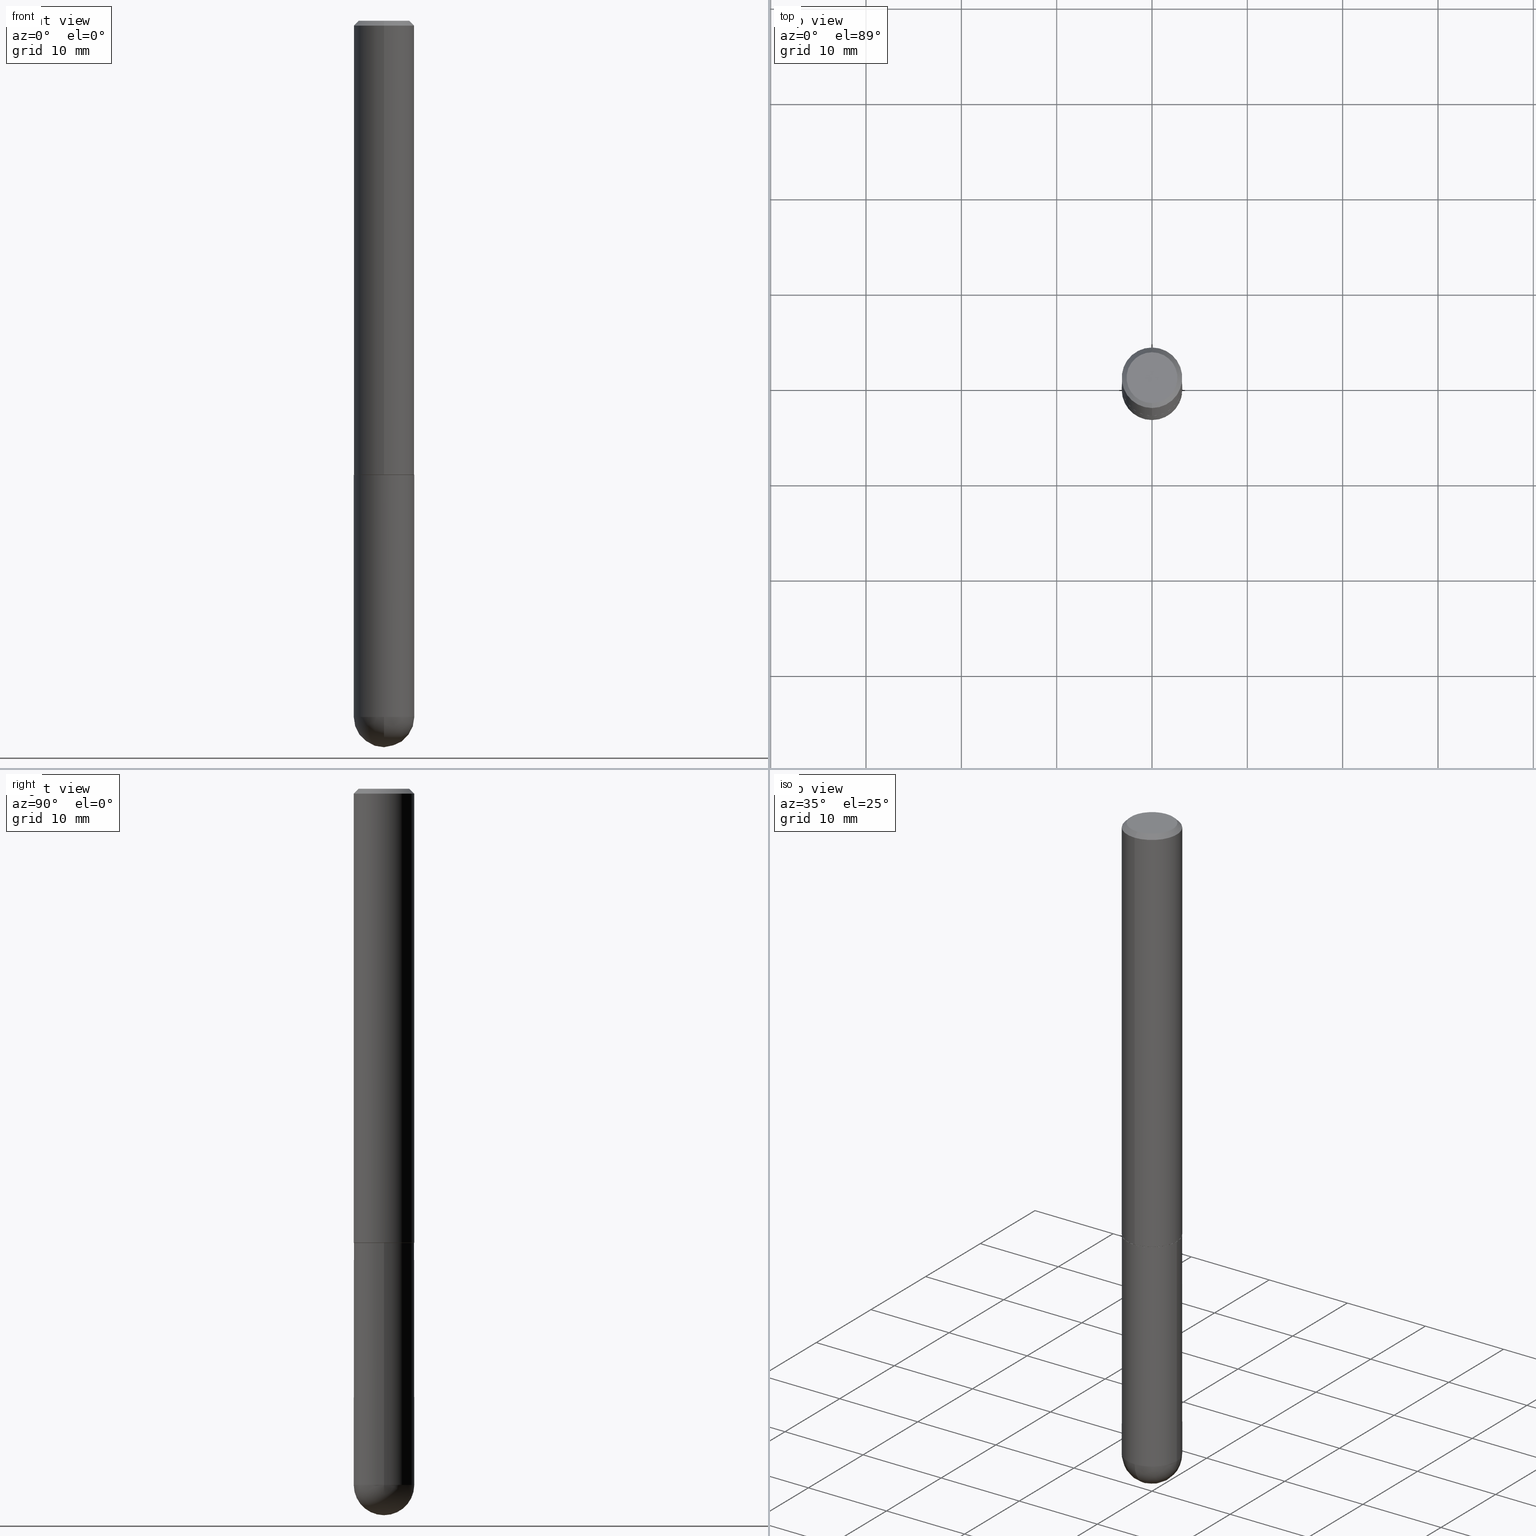
[diagram: canonical four-view strip — front | top / right | iso, engineering-drawing reading convention]
A machine part, canonical four-view strip (front | top / right | iso — engineering-drawing reading convention). The complete STEP part file that produces these views, byte-faithful:
ISO-10303-21;
HEADER;
FILE_DESCRIPTION (( 'STEP AP203' ),
    '1' );
FILE_NAME ('31832.STEP',
    '2024-02-21T16:59:24',
    ( '' ),
    ( '' ),
    'SwSTEP 2.0',
    'SolidWorks 2023',
    '' );
FILE_SCHEMA (( 'CONFIG_CONTROL_DESIGN' ));
ENDSEC;

DATA;
#1 = EDGE_LOOP ( 'NONE', ( #340, #269 ) ) ;
#2 = DIRECTION ( 'NONE',  ( -2.445468806185136597E-29, 3.491481338843145583E-15, 1.000000000000000000 ) ) ;
#3 = VERTEX_POINT ( 'NONE', #177 ) ;
#4 = CIRCLE ( 'NONE', #167, 0.1250000000000002498 ) ;
#5 = LOCAL_TIME ( 11, 59, 24.00000000000000000, #284 ) ;
#6 = APPROVAL_DATE_TIME ( #191, #7 ) ;
#7 = APPROVAL ( #339, 'UNSPECIFIED' ) ;
#8 = FACE_OUTER_BOUND ( 'NONE', #1, .T. ) ;
#9 = ADVANCED_FACE ( 'NONE', ( #8 ), #29, .F. ) ;
#10 = DIRECTION ( 'NONE',  ( -6.982962677686265133E-15, -1.000000000000000000, 3.490963975200467606E-15 ) ) ;
#11 = CARTESIAN_POINT ( 'NONE',  ( -8.658873720330510776E-16, -0.1240000000000065355, -1.874999999999999556 ) ) ;
#12 = DIRECTION ( 'NONE',  ( 2.438088387897960049E-29, -3.491481338843145188E-15, -1.000000000000000000 ) ) ;
#13 = CARTESIAN_POINT ( 'NONE',  ( 0.1250000000000000000, -8.728703347107833388E-16, 6.095220969744919741E-30 ) ) ;
#14 = CC_DESIGN_PERSON_AND_ORGANIZATION_ASSIGNMENT ( #256, #92, ( #372 ) ) ;
#15 = LOCAL_TIME ( 11, 59, 24.00000000000000000, #250 ) ;
#16 = DATE_TIME_ROLE ( 'classification_date' ) ;
#17 = APPROVAL_STATUS ( 'not_yet_approved' ) ;
#18 = CARTESIAN_POINT ( 'NONE',  ( 7.030722817782268837E-29, -1.003800884917404626E-14, -2.875000000000000444 ) ) ;
#19 = DIRECTION ( 'NONE',  ( 1.000000000000000000, -6.982962677686262766E-15, 0.000000000000000000 ) ) ;
#20 = ORGANIZATION ( 'UNSPECIFIED', 'UNSPECIFIED', '' ) ;
#21 = ADVANCED_FACE ( 'NONE', ( #384 ), #71, .T. ) ;
#22 = CARTESIAN_POINT ( 'NONE',  ( 8.728703347107839305E-16, 0.1249999999999999584, -0.02000000000000046185 ) ) ;
#23 = CYLINDRICAL_SURFACE ( 'NONE', #148, 0.1250000000000001388 ) ;
#24 = EDGE_CURVE ( 'NONE', #68, #3, #369, .T. ) ;
#25 = CIRCLE ( 'NONE', #316, 0.1050000000000001210 ) ;
#26 = APPROVAL_PERSON_ORGANIZATION ( #41, #7, #43 ) ;
#27 = LINE ( 'NONE', #209, #365 ) ;
#28 = ORIENTED_EDGE ( 'NONE', *, *, #378, .T. ) ;
#29 = PLANE ( 'NONE',  #87 ) ;
#30 = AXIS2_PLACEMENT_3D ( 'NONE', #390, #138, #166 ) ;
#31 = ORIENTED_EDGE ( 'NONE', *, *, #292, .T. ) ;
#32 = EDGE_CURVE ( 'NONE', #56, #356, #109, .T. ) ;
#33 = APPLICATION_CONTEXT ( 'configuration controlled 3d designs of mechanical parts and assemblies' ) ;
#34 = CARTESIAN_POINT ( 'NONE',  ( 4.583485568581772331E-29, -6.542066489525676145E-15, -1.874000000000000110 ) ) ;
#35 = ORIENTED_EDGE ( 'NONE', *, *, #227, .F. ) ;
#36 = LINE ( 'NONE', #67, #405 ) ;
#37 = ORIENTED_EDGE ( 'NONE', *, *, #382, .F. ) ;
#38 = AXIS2_PLACEMENT_3D ( 'NONE', #184, #285, #281 ) ;
#39 = EDGE_CURVE ( 'NONE', #3, #68, #278, .T. ) ;
#40 = DIRECTION ( 'NONE',  ( -2.445830079285897691E-29, 3.490963975200467606E-15, 1.000000000000000000 ) ) ;
#41 = PERSON_AND_ORGANIZATION ( #386, #20 ) ;
#42 = DIRECTION ( 'NONE',  ( -6.982962677686265922E-15, -1.000000000000000000, 3.490963975200467606E-15 ) ) ;
#43 = APPROVAL_ROLE ( '' ) ;
#44 = PLANE ( 'NONE',  #102 ) ;
#45 = DIRECTION ( 'NONE',  ( -2.445830079285897972E-29, 3.490963975200467212E-15, 1.000000000000000000 ) ) ;
#46 = EDGE_CURVE ( 'NONE', #272, #305, #195, .T. ) ;
#47 = CARTESIAN_POINT ( 'NONE',  ( -8.728703347107390640E-16, -0.1250000000000067724, -1.873999999999999444 ) ) ;
#48 =( NAMED_UNIT ( * ) PLANE_ANGLE_UNIT ( ) SI_UNIT ( $, .RADIAN. ) );
#49 = DIRECTION ( 'NONE',  ( -2.445830079285897691E-29, 3.490963975200467606E-15, 1.000000000000000000 ) ) ;
#50 =( CONVERSION_BASED_UNIT ( 'INCH', #214 ) LENGTH_UNIT ( ) NAMED_UNIT ( #302 ) );
#51 = CARTESIAN_POINT ( 'NONE',  ( 4.585931398661058487E-29, -6.545557453500877403E-15, -1.875000000000000000 ) ) ;
#52 = DIRECTION ( 'NONE',  ( -2.445830079285897691E-29, 3.490963975200467606E-15, 1.000000000000000000 ) ) ;
#53 = PRODUCT_DEFINITION_SHAPE ( 'NONE', 'NONE',  #271 ) ;
#54 = ORIENTED_EDGE ( 'NONE', *, *, #24, .F. ) ;
#55 = PRODUCT_RELATED_PRODUCT_CATEGORY ( 'detail', '', ( #113 ) ) ;
#56 = VERTEX_POINT ( 'NONE', #308 ) ;
#57 = ADVANCED_FACE ( 'NONE', ( #220 ), #44, .F. ) ;
#58 = CIRCLE ( 'NONE', #321, 0.1250000000000000000 ) ;
#59 = CARTESIAN_POINT ( 'NONE',  ( 0.000000000000000000, 0.000000000000000000, 0.000000000000000000 ) ) ;
#60 = APPROVAL_STATUS ( 'not_yet_approved' ) ;
#61 = VECTOR ( 'NONE', #404, 39.37007874015748143 ) ;
#62 = CARTESIAN_POINT ( 'NONE',  ( 4.585931398661058487E-29, -6.545557453500877403E-15, -1.875000000000000000 ) ) ;
#63 = DATE_AND_TIME ( #90, #15 ) ;
#64 = AXIS2_PLACEMENT_3D ( 'NONE', #139, #359, #134 ) ;
#65 = VECTOR ( 'NONE', #346, 39.37007874015748143 ) ;
#66 = EDGE_CURVE ( 'NONE', #356, #238, #181, .T. ) ;
#67 = CARTESIAN_POINT ( 'NONE',  ( -8.575622497214411495E-16, -0.1250000000000001110, -0.01999999999999959102 ) ) ;
#68 = VERTEX_POINT ( 'NONE', #122 ) ;
#69 = ORIENTED_EDGE ( 'NONE', *, *, #83, .F. ) ;
#70 = DIRECTION ( 'NONE',  ( 5.024295867788490741E-15, 0.7071067811866103003, 0.7071067811864847341 ) ) ;
#71 = SPHERICAL_SURFACE ( 'NONE', #30, 0.1250000000000001943 ) ;
#72 = AXIS2_PLACEMENT_3D ( 'NONE', #34, #229, #173 ) ;
#73 = AXIS2_PLACEMENT_3D ( 'NONE', #247, #178, #77 ) ;
#74 = ORIENTED_EDGE ( 'NONE', *, *, #329, .T. ) ;
#75 = EDGE_CURVE ( 'NONE', #140, #238, #4, .T. ) ;
#76 = EDGE_LOOP ( 'NONE', ( #300, #94, #142, #385 ) ) ;
#77 = DIRECTION ( 'NONE',  ( 6.982962677686265922E-15, 1.000000000000000000, -3.483106191921934765E-15 ) ) ;
#78 = APPLICATION_CONTEXT ( 'configuration controlled 3d designs of mechanical parts and assemblies' ) ;
#79 = CARTESIAN_POINT ( 'NONE',  ( 8.728703347108290928E-16, 0.1249999999999934636, -1.875000000000000666 ) ) ;
#80 = AXIS2_PLACEMENT_3D ( 'NONE', #107, #275, #323 ) ;
#81 = CIRCLE ( 'NONE', #343, 0.1250000000000000000 ) ;
#82 = CARTESIAN_POINT ( 'NONE',  ( 1.984939338735225385E-45, -2.833128835551018326E-31, -8.115606049438900564E-17 ) ) ;
#83 = EDGE_CURVE ( 'NONE', #145, #267, #58, .T. ) ;
#84 = DIRECTION ( 'NONE',  ( 6.982962677686265133E-15, 1.000000000000000000, 0.000000000000000000 ) ) ;
#85 = MANIFOLD_SOLID_BREP ( 'Body-Move/Copy2[2]', #98 ) ;
#86 = ORIENTED_EDGE ( 'NONE', *, *, #319, .T. ) ;
#87 = AXIS2_PLACEMENT_3D ( 'NONE', #268, #381, #294 ) ;
#88 = FACE_OUTER_BOUND ( 'NONE', #320, .T. ) ;
#89 = APPROVAL_DATE_TIME ( #371, #101 ) ;
#90 = CALENDAR_DATE ( 2024, 21, 2 ) ;
#91 = EDGE_CURVE ( 'NONE', #258, #293, #154, .T. ) ;
#92 = PERSON_AND_ORGANIZATION_ROLE ( 'creator' ) ;
#93 = EDGE_CURVE ( 'NONE', #192, #297, #291, .T. ) ;
#94 = ORIENTED_EDGE ( 'NONE', *, *, #32, .T. ) ;
#95 = DIRECTION ( 'NONE',  ( -2.445830079285897691E-29, 3.490963975200467606E-15, 1.000000000000000000 ) ) ;
#96 = CALENDAR_DATE ( 2024, 21, 2 ) ;
#97 = CARTESIAN_POINT ( 'NONE',  ( 8.728703347108524628E-16, 0.1249999999999898276, -2.875000000000000888 ) ) ;
#98 = CLOSED_SHELL ( 'NONE', ( #239, #333, #225, #200, #264, #189, #393, #9 ) ) ;
#99 = CARTESIAN_POINT ( 'NONE',  ( 7.010631429948896263E-29, -1.094097234217481886E-14, -3.000000000000000888 ) ) ;
#100 = LOCAL_TIME ( 11, 59, 24.00000000000000000, #307 ) ;
#101 = APPROVAL ( #17, 'UNSPECIFIED' ) ;
#102 = AXIS2_PLACEMENT_3D ( 'NONE', #79, #12, #183 ) ;
#103 = ORIENTED_EDGE ( 'NONE', *, *, #144, .T. ) ;
#104 = CARTESIAN_POINT ( 'NONE',  ( 8.030407079339213225E-16, 0.1050000000000001210, -4.477072778904384504E-16 ) ) ;
#105 = ORIENTED_EDGE ( 'NONE', *, *, #242, .T. ) ;
#106 = ADVANCED_FACE ( 'NONE', ( #158 ), #279, .T. ) ;
#107 = CARTESIAN_POINT ( 'NONE',  ( 4.585254011597131119E-29, -6.546527510330898707E-15, -1.875000000000000000 ) ) ;
#108 = ORIENTED_EDGE ( 'NONE', *, *, #273, .F. ) ;
#109 = CIRCLE ( 'NONE', #286, 0.1239999999999999991 ) ;
#110 = CONICAL_SURFACE ( 'NONE', #120, 0.1239999999999999991, 0.7853981633975336552 ) ;
#111 = ORIENTED_EDGE ( 'NONE', *, *, #39, .T. ) ;
#112 = DATE_AND_TIME ( #96, #287 ) ;
#113 = PRODUCT ( '31832', '31832', '', ( #363 ) ) ;
#114 = APPLICATION_PROTOCOL_DEFINITION ( 'international standard', 'config_control_design', 1994, #78 ) ;
#115 = ORIENTED_EDGE ( 'NONE', *, *, #83, .T. ) ;
#116 = UNCERTAINTY_MEASURE_WITH_UNIT (LENGTH_MEASURE( 1.000000000000000082E-05 ), #50, 'distance_accuracy_value', 'NONE');
#117 = CC_DESIGN_DATE_AND_TIME_ASSIGNMENT ( #389, #276, ( #271 ) ) ;
#118 = DIRECTION ( 'NONE',  ( 6.982962677686265922E-15, 1.000000000000000000, -3.483106191921934765E-15 ) ) ;
#119 = CARTESIAN_POINT ( 'NONE',  ( -8.658873720330510776E-16, -0.1240000000000065355, -1.874999999999999556 ) ) ;
#120 = AXIS2_PLACEMENT_3D ( 'NONE', #62, #131, #310 ) ;
#121 = CARTESIAN_POINT ( 'NONE',  ( 4.891660158571801654E-31, -6.981927950400942509E-17, -0.02000000000000002470 ) ) ;
#122 = CARTESIAN_POINT ( 'NONE',  ( 0.1250000000000000000, -7.419397845041682046E-15, -1.875000000000000000 ) ) ;
#123 = CARTESIAN_POINT ( 'NONE',  ( 6.699603039868382590E-29, -1.051219121731409656E-14, -2.875000000000000444 ) ) ;
#124 = ORIENTED_EDGE ( 'NONE', *, *, #66, .F. ) ;
#125 = DIRECTION ( 'NONE',  ( -6.982962677686265922E-15, -1.000000000000000000, 4.406206441393973340E-15 ) ) ;
#126 = ORIENTED_EDGE ( 'NONE', *, *, #319, .F. ) ;
#127 = CIRCLE ( 'NONE', #72, 0.1250000000000002498 ) ;
#128 = ADVANCED_FACE ( 'NONE', ( #151 ), #411, .T. ) ;
#129 = CARTESIAN_POINT ( 'NONE',  ( -8.575622497214411495E-16, -0.1250000000000001110, -0.01999999999999959102 ) ) ;
#130 = ORIENTED_EDGE ( 'NONE', *, *, #360, .T. ) ;
#131 = DIRECTION ( 'NONE',  ( -2.445830079285897691E-29, 3.490963975200467606E-15, 1.000000000000000000 ) ) ;
#132 = APPROVAL_ROLE ( '' ) ;
#133 = CARTESIAN_POINT ( 'NONE',  ( -0.1250000000000000000, 8.881784197001252323E-16, -6.148668862818632227E-30 ) ) ;
#134 = DIRECTION ( 'NONE',  ( 1.000000000000000000, -6.982962677686266711E-15, 4.876176775795935793E-29 ) ) ;
#135 = ORIENTED_EDGE ( 'NONE', *, *, #295, .F. ) ;
#136 = CC_DESIGN_DATE_AND_TIME_ASSIGNMENT ( #63, #16, ( #186 ) ) ;
#137 = CARTESIAN_POINT ( 'NONE',  ( 4.585931398661058487E-29, -6.545557453500877403E-15, -1.875000000000000000 ) ) ;
#138 = DIRECTION ( 'NONE',  ( -1.000000000000000000, 6.982962677686265922E-15, -4.883557194083112901E-29 ) ) ;
#139 = CARTESIAN_POINT ( 'NONE',  ( 0.000000000000000000, 0.000000000000000000, 0.000000000000000000 ) ) ;
#140 = VERTEX_POINT ( 'NONE', #210 ) ;
#141 = DIRECTION ( 'NONE',  ( 6.982962677686265922E-15, 1.000000000000000000, -4.370956789862814839E-15 ) ) ;
#142 = ORIENTED_EDGE ( 'NONE', *, *, #66, .T. ) ;
#143 = COORDINATED_UNIVERSAL_TIME_OFFSET ( 5, 0, .BEHIND. ) ;
#144 = EDGE_CURVE ( 'NONE', #56, #140, #324, .T. ) ;
#145 = VERTEX_POINT ( 'NONE', #175 ) ;
#146 = CIRCLE ( 'NONE', #196, 0.1239999999999999991 ) ;
#147 = CARTESIAN_POINT ( 'NONE',  ( 7.030722817782268837E-29, -1.003800884917404626E-14, -2.875000000000000444 ) ) ;
#148 = AXIS2_PLACEMENT_3D ( 'NONE', #190, #228, #42 ) ;
#149 = COORDINATED_UNIVERSAL_TIME_OFFSET ( 5, 0, .BEHIND. ) ;
#150 = DIRECTION ( 'NONE',  ( 1.000000000000000000, 0.000000000000000000, 0.000000000000000000 ) ) ;
#151 = FACE_OUTER_BOUND ( 'NONE', #174, .T. ) ;
#152 = FACE_OUTER_BOUND ( 'NONE', #387, .T. ) ;
#153 = DIRECTION ( 'NONE',  ( 1.000000000000000000, -6.982962677686262766E-15, 0.000000000000000000 ) ) ;
#154 = CIRCLE ( 'NONE', #376, 0.1250000000000000278 ) ;
#155 = CIRCLE ( 'NONE', #337, 0.1250000000000000000 ) ;
#156 = DIRECTION ( 'NONE',  ( -6.982962677686265133E-15, -1.000000000000000000, 3.490963975200467606E-15 ) ) ;
#157 = CARTESIAN_POINT ( 'NONE',  ( 0.000000000000000000, 0.000000000000000000, 0.000000000000000000 ) ) ;
#158 = FACE_OUTER_BOUND ( 'NONE', #361, .T. ) ;
#159 = ORIENTED_EDGE ( 'NONE', *, *, #93, .F. ) ;
#160 = DIRECTION ( 'NONE',  ( -2.445830079285897691E-29, 3.490963975200467606E-15, 1.000000000000000000 ) ) ;
#161 = DIRECTION ( 'NONE',  ( -6.982962677686265922E-15, -1.000000000000000000, 4.406206441393973340E-15 ) ) ;
#162 = DIRECTION ( 'NONE',  ( -2.445468806185136597E-29, 3.491481338843145583E-15, 1.000000000000000000 ) ) ;
#163 = AXIS2_PLACEMENT_3D ( 'NONE', #306, #218, #388 ) ;
#164 = DIRECTION ( 'NONE',  ( -2.445468806185136597E-29, 3.491481338843145583E-15, 1.000000000000000000 ) ) ;
#165 = EDGE_CURVE ( 'NONE', #238, #140, #127, .T. ) ;
#166 = DIRECTION ( 'NONE',  ( 6.982962677686265922E-15, 1.000000000000000000, -4.370956789862814839E-15 ) ) ;
#167 = AXIS2_PLACEMENT_3D ( 'NONE', #398, #219, #301 ) ;
#168 = APPROVAL_PERSON_ORGANIZATION ( #341, #212, #132 ) ;
#169 = ORIENTED_EDGE ( 'NONE', *, *, #91, .T. ) ;
#170 = ADVANCED_FACE ( 'NONE', ( #204 ), #326, .T. ) ;
#171 = ORIENTED_EDGE ( 'NONE', *, *, #403, .F. ) ;
#172 = DIRECTION ( 'NONE',  ( -2.445468806185136597E-29, 3.491481338843145583E-15, 1.000000000000000000 ) ) ;
#173 = DIRECTION ( 'NONE',  ( -6.982962677686265133E-15, -1.000000000000000000, 4.370956789862812472E-15 ) ) ;
#174 = EDGE_LOOP ( 'NONE', ( #126, #130, #115, #241, #202 ) ) ;
#175 = CARTESIAN_POINT ( 'NONE',  ( -8.881784197000569959E-16, -0.1250000000000103806, -2.875000000000000000 ) ) ;
#176 = CONICAL_SURFACE ( 'NONE', #215, 0.1250000000000000278, 0.7853981633974473908 ) ;
#177 = CARTESIAN_POINT ( 'NONE',  ( -0.1250000000000000000, -7.404089760052348041E-15, -1.875000000000000000 ) ) ;
#178 = DIRECTION ( 'NONE',  ( 2.445830079285897691E-29, -3.490963975200467606E-15, -1.000000000000000000 ) ) ;
#179 = PERSON_AND_ORGANIZATION_ROLE ( 'creator' ) ;
#180 = EDGE_CURVE ( 'NONE', #297, #258, #36, .T. ) ;
#181 = LINE ( 'NONE', #119, #185 ) ;
#182 = SECURITY_CLASSIFICATION_LEVEL ( 'unclassified' ) ;
#183 = DIRECTION ( 'NONE',  ( -1.000000000000000000, 6.982962677686265922E-15, -4.876176775795935793E-29 ) ) ;
#184 = CARTESIAN_POINT ( 'NONE',  ( 4.585931398661058487E-29, -6.545557453500877403E-15, -1.875000000000000000 ) ) ;
#185 = VECTOR ( 'NONE', #367, 39.37007874015748143 ) ;
#186 = SECURITY_CLASSIFICATION ( '', '', #182 ) ;
#187 = FACE_OUTER_BOUND ( 'NONE', #207, .T. ) ;
#188 = PERSON_AND_ORGANIZATION_ROLE ( 'design_owner' ) ;
#189 = ADVANCED_FACE ( 'NONE', ( #317 ), #348, .T. ) ;
#190 = CARTESIAN_POINT ( 'NONE',  ( 0.000000000000000000, 0.000000000000000000, 0.000000000000000000 ) ) ;
#191 = DATE_AND_TIME ( #282, #100 ) ;
#192 = VERTEX_POINT ( 'NONE', #104 ) ;
#193 = CARTESIAN_POINT ( 'NONE',  ( -8.728703347107842263E-16, -0.1250000000000001388, 4.363704969000589438E-16 ) ) ;
#194 = ORIENTED_EDGE ( 'NONE', *, *, #360, .F. ) ;
#195 = CIRCLE ( 'NONE', #394, 0.1250000000000001943 ) ;
#196 = AXIS2_PLACEMENT_3D ( 'NONE', #312, #160, #161 ) ;
#197 = CARTESIAN_POINT ( 'NONE',  ( 8.728703347107839305E-16, 0.1249999999999999584, -0.02000000000000046185 ) ) ;
#198 = CLOSED_SHELL ( 'NONE', ( #170, #21, #106, #57, #128 ) ) ;
#199 = APPROVAL_PERSON_ORGANIZATION ( #240, #101, #283 ) ;
#200 = ADVANCED_FACE ( 'NONE', ( #88 ), #176, .T. ) ;
#201 = DIRECTION ( 'NONE',  ( -4.851104656540959542E-15, -0.7071067811865493491, -0.7071067811865457964 ) ) ;
#202 = ORIENTED_EDGE ( 'NONE', *, *, #39, .F. ) ;
#203 = ORIENTED_EDGE ( 'NONE', *, *, #165, .F. ) ;
#204 = FACE_OUTER_BOUND ( 'NONE', #231, .T. ) ;
#205 = AXIS2_PLACEMENT_3D ( 'NONE', #280, #334, #10 ) ;
#206 = AXIS2_PLACEMENT_3D ( 'NONE', #157, #396, #150 ) ;
#207 = EDGE_LOOP ( 'NONE', ( #234, #103, #203, #124 ) ) ;
#208 = EDGE_LOOP ( 'NONE', ( #368, #28, #379, #409 ) ) ;
#209 = CARTESIAN_POINT ( 'NONE',  ( 8.881784197001260212E-16, 0.1250000000000001388, -4.363704969000589438E-16 ) ) ;
#210 = CARTESIAN_POINT ( 'NONE',  ( 8.881784197001496870E-16, 0.1249999999999936995, -1.874000000000000554 ) ) ;
#211 = ORIENTED_EDGE ( 'NONE', *, *, #32, .F. ) ;
#212 = APPROVAL ( #60, 'UNSPECIFIED' ) ;
#213 = CC_DESIGN_PERSON_AND_ORGANIZATION_ASSIGNMENT ( #397, #288, ( #186 ) ) ;
#214 = LENGTH_MEASURE_WITH_UNIT ( LENGTH_MEASURE( 0.02539999999999999897 ), #366 );
#215 = AXIS2_PLACEMENT_3D ( 'NONE', #121, #400, #118 ) ;
#216 = CARTESIAN_POINT ( 'NONE',  ( 4.891660158571801654E-31, -6.981927950400942509E-17, -0.02000000000000002470 ) ) ;
#217 = EDGE_CURVE ( 'NONE', #272, #145, #235, .T. ) ;
#218 = DIRECTION ( 'NONE',  ( -1.000000000000000000, 7.105427357601001070E-15, -4.926315508542082329E-29 ) ) ;
#219 = DIRECTION ( 'NONE',  ( -2.445830079285897691E-29, 3.490963975200467606E-15, 1.000000000000000000 ) ) ;
#220 = FACE_OUTER_BOUND ( 'NONE', #263, .T. ) ;
#221 = CIRCLE ( 'NONE', #265, 0.1250000000000000000 ) ;
#222 = APPLICATION_PROTOCOL_DEFINITION ( 'international standard', 'config_control_design', 1994, #33 ) ;
#223 = DIRECTION ( 'NONE',  ( -2.445468806185136877E-29, 3.491481338843145188E-15, 1.000000000000000000 ) ) ;
#224 = DIRECTION ( 'NONE',  ( -2.445830079285897972E-29, 3.490963975200467212E-15, 1.000000000000000000 ) ) ;
#225 = ADVANCED_FACE ( 'NONE', ( #152 ), #304, .T. ) ;
#226 = CARTESIAN_POINT ( 'NONE',  ( -0.1250000000000000000, -7.404089760052348041E-15, -2.875000000000000444 ) ) ;
#227 = EDGE_CURVE ( 'NONE', #297, #192, #25, .T. ) ;
#228 = DIRECTION ( 'NONE',  ( -2.445830079285897691E-29, 3.490963975200467606E-15, 1.000000000000000000 ) ) ;
#229 = DIRECTION ( 'NONE',  ( -2.445830079285897691E-29, 3.490963975200467606E-15, 1.000000000000000000 ) ) ;
#230 = ORIENTED_EDGE ( 'NONE', *, *, #378, .F. ) ;
#231 = EDGE_LOOP ( 'NONE', ( #105, #86, #54, #37, #325 ) ) ;
#232 = DIRECTION ( 'NONE',  ( 1.000000000000000000, -6.982962677686262766E-15, 0.000000000000000000 ) ) ;
#233 = CARTESIAN_POINT ( 'NONE',  ( 8.810729923425699781E-16, 0.1239999999999934627, -1.875000000000000666 ) ) ;
#234 = ORIENTED_EDGE ( 'NONE', *, *, #295, .T. ) ;
#235 = CIRCLE ( 'NONE', #163, 0.1250000000000001943 ) ;
#236 = VECTOR ( 'NONE', #223, 39.37007874015748143 ) ;
#237 = ORIENTED_EDGE ( 'NONE', *, *, #180, .F. ) ;
#238 = VERTEX_POINT ( 'NONE', #47 ) ;
#239 = ADVANCED_FACE ( 'NONE', ( #187 ), #110, .T. ) ;
#240 = PERSON_AND_ORGANIZATION ( #386, #20 ) ;
#241 = ORIENTED_EDGE ( 'NONE', *, *, #382, .T. ) ;
#242 = EDGE_CURVE ( 'NONE', #305, #327, #81, .T. ) ;
#243 = PERSON_AND_ORGANIZATION ( #386, #20 ) ;
#244 = CARTESIAN_POINT ( 'NONE',  ( 4.585254011597131119E-29, -6.546527510330898707E-15, -1.875000000000000000 ) ) ;
#245 = LOCAL_TIME ( 11, 59, 24.00000000000000000, #149 ) ;
#246 = DESIGN_CONTEXT ( 'detailed design', #33, 'design' ) ;
#247 = CARTESIAN_POINT ( 'NONE',  ( 4.891660158571801654E-31, -6.981927950400942509E-17, -0.02000000000000002470 ) ) ;
#248 = DIRECTION ( 'NONE',  ( -1.000000000000000000, 6.982962677686265922E-15, -4.883557194083112901E-29 ) ) ;
#249 = FACE_OUTER_BOUND ( 'NONE', #315, .T. ) ;
#250 = COORDINATED_UNIVERSAL_TIME_OFFSET ( 5, 0, .BEHIND. ) ;
#251 = CARTESIAN_POINT ( 'NONE',  ( 4.891660158571801654E-31, -6.981927950400942509E-17, -0.02000000000000002470 ) ) ;
#252 = ORIENTED_EDGE ( 'NONE', *, *, #180, .T. ) ;
#253 = DIRECTION ( 'NONE',  ( 1.000000000000000000, -6.982962677686262766E-15, 0.000000000000000000 ) ) ;
#254 = VECTOR ( 'NONE', #224, 39.37007874015748143 ) ;
#255 = FACE_OUTER_BOUND ( 'NONE', #309, .T. ) ;
#256 = PERSON_AND_ORGANIZATION ( #386, #20 ) ;
#257 = CYLINDRICAL_SURFACE ( 'NONE', #358, 0.1250000000000001388 ) ;
#258 = VERTEX_POINT ( 'NONE', #129 ) ;
#259 = PERSON_AND_ORGANIZATION_ROLE ( 'design_supplier' ) ;
#260 = APPROVAL_DATE_TIME ( #112, #212 ) ;
#261 = AXIS2_PLACEMENT_3D ( 'NONE', #395, #248, #141 ) ;
#262 = FACE_OUTER_BOUND ( 'NONE', #208, .T. ) ;
#263 = EDGE_LOOP ( 'NONE', ( #318, #111 ) ) ;
#264 = ADVANCED_FACE ( 'NONE', ( #255 ), #257, .T. ) ;
#265 = AXIS2_PLACEMENT_3D ( 'NONE', #147, #164, #408 ) ;
#266 = DIRECTION ( 'NONE',  ( -2.445830079285897691E-29, 3.490963975200467606E-15, 1.000000000000000000 ) ) ;
#267 = VERTEX_POINT ( 'NONE', #313 ) ;
#268 = CARTESIAN_POINT ( 'NONE',  ( 7.332110811570587146E-16, 0.1050000000000001210, -4.071292476432439846E-16 ) ) ;
#269 = ORIENTED_EDGE ( 'NONE', *, *, #227, .T. ) ;
#270 = DIRECTION ( 'NONE',  ( 1.000000000000000000, -6.982962677686266711E-15, 4.876176775795935793E-29 ) ) ;
#271 = PRODUCT_DEFINITION ( 'UNKNOWN', '', #372, #246 ) ;
#272 = VERTEX_POINT ( 'NONE', #99 ) ;
#273 = EDGE_CURVE ( 'NONE', #267, #305, #155, .T. ) ;
#274 = CALENDAR_DATE ( 2024, 21, 2 ) ;
#275 = DIRECTION ( 'NONE',  ( -2.445468806185136597E-29, 3.491481338843145583E-15, 1.000000000000000000 ) ) ;
#276 = DATE_TIME_ROLE ( 'creation_date' ) ;
#277 = DIRECTION ( 'NONE',  ( -2.445468806185136597E-29, 3.491481338843145583E-15, 1.000000000000000000 ) ) ;
#278 = CIRCLE ( 'NONE', #342, 0.1250000000000000000 ) ;
#279 = SPHERICAL_SURFACE ( 'NONE', #261, 0.1250000000000001943 ) ;
#280 = CARTESIAN_POINT ( 'NONE',  ( 1.984939338735225385E-45, -2.833128835551018326E-31, -8.115606049438900564E-17 ) ) ;
#281 = DIRECTION ( 'NONE',  ( -6.982962677686265922E-15, -1.000000000000000000, 3.490963975200467212E-15 ) ) ;
#282 = CALENDAR_DATE ( 2024, 21, 2 ) ;
#283 = APPROVAL_ROLE ( '' ) ;
#284 = COORDINATED_UNIVERSAL_TIME_OFFSET ( 5, 0, .BEHIND. ) ;
#285 = DIRECTION ( 'NONE',  ( -2.445830079285897691E-29, 3.490963975200467212E-15, 1.000000000000000000 ) ) ;
#286 = AXIS2_PLACEMENT_3D ( 'NONE', #51, #391, #125 ) ;
#287 = LOCAL_TIME ( 11, 59, 24.00000000000000000, #143 ) ;
#288 = PERSON_AND_ORGANIZATION_ROLE ( 'classification_officer' ) ;
#289 = CARTESIAN_POINT ( 'NONE',  ( -7.889572697437263111E-16, -0.1050000000000001210, 2.853951569016605377E-16 ) ) ;
#290 = LINE ( 'NONE', #133, #65 ) ;
#291 = CIRCLE ( 'NONE', #205, 0.1050000000000001210 ) ;
#292 = EDGE_CURVE ( 'NONE', #238, #258, #353, .T. ) ;
#293 = VERTEX_POINT ( 'NONE', #197 ) ;
#294 = DIRECTION ( 'NONE',  ( 6.982962677686265922E-15, 1.000000000000000000, -3.490963975200467212E-15 ) ) ;
#295 = EDGE_CURVE ( 'NONE', #356, #56, #146, .T. ) ;
#296 = ORIENTED_EDGE ( 'NONE', *, *, #46, .F. ) ;
#297 = VERTEX_POINT ( 'NONE', #289 ) ;
#298 = VECTOR ( 'NONE', #70, 39.37007874015748143 ) ;
#299 = AXIS2_PLACEMENT_3D ( 'NONE', #251, #52, #392 ) ;
#300 = ORIENTED_EDGE ( 'NONE', *, *, #144, .F. ) ;
#301 = DIRECTION ( 'NONE',  ( -6.982962677686265133E-15, -1.000000000000000000, 4.370956789862812472E-15 ) ) ;
#302 = DIMENSIONAL_EXPONENTS ( 1.000000000000000000, 0.000000000000000000, 0.000000000000000000, 0.000000000000000000, 0.000000000000000000, 0.000000000000000000, 0.000000000000000000 ) ;
#303 = DIRECTION ( 'NONE',  ( -2.445468806185136597E-29, 3.491481338843145583E-15, 1.000000000000000000 ) ) ;
#304 = CONICAL_SURFACE ( 'NONE', #73, 0.1250000000000000278, 0.7853981633974473908 ) ;
#305 = VERTEX_POINT ( 'NONE', #97 ) ;
#306 = CARTESIAN_POINT ( 'NONE',  ( 6.699603039868382590E-29, -1.051219121731409656E-14, -2.875000000000000444 ) ) ;
#307 = COORDINATED_UNIVERSAL_TIME_OFFSET ( 5, 0, .BEHIND. ) ;
#308 = CARTESIAN_POINT ( 'NONE',  ( 8.846257060213712710E-16, 0.1239999999999934627, -1.875000000000000666 ) ) ;
#309 = EDGE_LOOP ( 'NONE', ( #230, #352, #31, #171 ) ) ;
#310 = DIRECTION ( 'NONE',  ( -6.982962677686265922E-15, -1.000000000000000000, 4.406206441393973340E-15 ) ) ;
#311 = CC_DESIGN_APPROVAL ( #212, ( #186 ) ) ;
#312 = CARTESIAN_POINT ( 'NONE',  ( 4.585931398661058487E-29, -6.545557453500877403E-15, -1.875000000000000000 ) ) ;
#313 = CARTESIAN_POINT ( 'NONE',  ( 0.1250000000000000000, -9.165138514463255034E-15, -2.875000000000000444 ) ) ;
#314 = CALENDAR_DATE ( 2024, 21, 2 ) ;
#315 = EDGE_LOOP ( 'NONE', ( #135, #211 ) ) ;
#316 = AXIS2_PLACEMENT_3D ( 'NONE', #82, #40, #156 ) ;
#317 = FACE_OUTER_BOUND ( 'NONE', #76, .T. ) ;
#318 = ORIENTED_EDGE ( 'NONE', *, *, #24, .T. ) ;
#319 = EDGE_CURVE ( 'NONE', #327, #3, #290, .T. ) ;
#320 = EDGE_LOOP ( 'NONE', ( #237, #159, #74, #362 ) ) ;
#321 = AXIS2_PLACEMENT_3D ( 'NONE', #18, #303, #153 ) ;
#322 = CC_DESIGN_APPROVAL ( #7, ( #271 ) ) ;
#323 = DIRECTION ( 'NONE',  ( 1.000000000000000000, -6.982962677686262766E-15, 0.000000000000000000 ) ) ;
#324 = LINE ( 'NONE', #233, #298 ) ;
#325 = ORIENTED_EDGE ( 'NONE', *, *, #273, .T. ) ;
#326 = CYLINDRICAL_SURFACE ( 'NONE', #357, 0.1250000000000000000 ) ;
#327 = VERTEX_POINT ( 'NONE', #226 ) ;
#328 = CC_DESIGN_APPROVAL ( #101, ( #372 ) ) ;
#329 = EDGE_CURVE ( 'NONE', #192, #293, #345, .T. ) ;
#330 =( NAMED_UNIT ( * ) SI_UNIT ( $, .STERADIAN. ) SOLID_ANGLE_UNIT ( ) );
#331 = DIRECTION ( 'NONE',  ( -6.982962677686265922E-15, -1.000000000000000000, 3.483106191921934765E-15 ) ) ;
#332 = ADVANCED_BREP_SHAPE_REPRESENTATION ( '31832', ( #351, #85, #206 ), #377 ) ;
#333 = ADVANCED_FACE ( 'NONE', ( #262 ), #23, .T. ) ;
#334 = DIRECTION ( 'NONE',  ( -2.445830079285897691E-29, 3.490963975200467606E-15, 1.000000000000000000 ) ) ;
#335 = LINE ( 'NONE', #13, #236 ) ;
#336 = AXIS2_PLACEMENT_3D ( 'NONE', #137, #266, #380 ) ;
#337 = AXIS2_PLACEMENT_3D ( 'NONE', #383, #172, #232 ) ;
#338 = PLANE ( 'NONE',  #38 ) ;
#339 = APPROVAL_STATUS ( 'not_yet_approved' ) ;
#340 = ORIENTED_EDGE ( 'NONE', *, *, #93, .T. ) ;
#341 = PERSON_AND_ORGANIZATION ( #386, #20 ) ;
#342 = AXIS2_PLACEMENT_3D ( 'NONE', #244, #277, #253 ) ;
#343 = AXIS2_PLACEMENT_3D ( 'NONE', #347, #162, #19 ) ;
#344 = ORIENTED_EDGE ( 'NONE', *, *, #217, .T. ) ;
#345 = LINE ( 'NONE', #22, #61 ) ;
#346 = DIRECTION ( 'NONE',  ( -2.445468806185136877E-29, 3.491481338843145188E-15, 1.000000000000000000 ) ) ;
#347 = CARTESIAN_POINT ( 'NONE',  ( 7.030722817782268837E-29, -1.003800884917404626E-14, -2.875000000000000444 ) ) ;
#348 = CONICAL_SURFACE ( 'NONE', #336, 0.1239999999999999991, 0.7853981633975336552 ) ;
#349 = CC_DESIGN_SECURITY_CLASSIFICATION ( #186, ( #372 ) ) ;
#350 = CC_DESIGN_PERSON_AND_ORGANIZATION_ASSIGNMENT ( #243, #179, ( #271 ) ) ;
#351 = MANIFOLD_SOLID_BREP ( 'Body-Move/Copy2[1]', #198 ) ;
#352 = ORIENTED_EDGE ( 'NONE', *, *, #75, .T. ) ;
#353 = LINE ( 'NONE', #193, #254 ) ;
#354 = CARTESIAN_POINT ( 'NONE',  ( 0.000000000000000000, 0.000000000000000000, 0.000000000000000000 ) ) ;
#355 = CC_DESIGN_PERSON_AND_ORGANIZATION_ASSIGNMENT ( #373, #259, ( #372 ) ) ;
#356 = VERTEX_POINT ( 'NONE', #11 ) ;
#357 = AXIS2_PLACEMENT_3D ( 'NONE', #354, #2, #270 ) ;
#358 = AXIS2_PLACEMENT_3D ( 'NONE', #59, #95, #375 ) ;
#359 = DIRECTION ( 'NONE',  ( -2.445468806185136597E-29, 3.491481338843145583E-15, 1.000000000000000000 ) ) ;
#360 = EDGE_CURVE ( 'NONE', #327, #145, #221, .T. ) ;
#361 = EDGE_LOOP ( 'NONE', ( #374, #401, #108, #69 ) ) ;
#362 = ORIENTED_EDGE ( 'NONE', *, *, #403, .T. ) ;
#363 = MECHANICAL_CONTEXT ( 'NONE', #78, 'mechanical' ) ;
#364 = DIRECTION ( 'NONE',  ( 1.000000000000000000, -6.982962677686265922E-15, 4.883557194083112340E-29 ) ) ;
#365 = VECTOR ( 'NONE', #45, 39.37007874015748143 ) ;
#366 =( LENGTH_UNIT ( ) NAMED_UNIT ( * ) SI_UNIT ( $, .METRE. ) );
#367 = DIRECTION ( 'NONE',  ( -4.937700262164969294E-15, -0.7071067811866054154, 0.7071067811864896191 ) ) ;
#368 = ORIENTED_EDGE ( 'NONE', *, *, #165, .T. ) ;
#369 = CIRCLE ( 'NONE', #80, 0.1250000000000000000 ) ;
#370 = PERSON_AND_ORGANIZATION ( #386, #20 ) ;
#371 = DATE_AND_TIME ( #314, #5 ) ;
#372 = PRODUCT_DEFINITION_FORMATION_WITH_SPECIFIED_SOURCE ( 'ANY', '', #113, .NOT_KNOWN. ) ;
#373 = PERSON_AND_ORGANIZATION ( #386, #20 ) ;
#374 = ORIENTED_EDGE ( 'NONE', *, *, #217, .F. ) ;
#375 = DIRECTION ( 'NONE',  ( -6.982962677686265922E-15, -1.000000000000000000, 3.490963975200467606E-15 ) ) ;
#376 = AXIS2_PLACEMENT_3D ( 'NONE', #216, #49, #331 ) ;
#377 =( GEOMETRIC_REPRESENTATION_CONTEXT ( 3 ) GLOBAL_UNCERTAINTY_ASSIGNED_CONTEXT ( ( #116 ) ) GLOBAL_UNIT_ASSIGNED_CONTEXT ( ( #50, #48, #330 ) ) REPRESENTATION_CONTEXT ( 'NONE', 'WORKASPACE' ) );
#378 = EDGE_CURVE ( 'NONE', #140, #293, #27, .T. ) ;
#379 = ORIENTED_EDGE ( 'NONE', *, *, #91, .F. ) ;
#380 = DIRECTION ( 'NONE',  ( -6.982962677686265922E-15, -1.000000000000000000, 4.406206441393973340E-15 ) ) ;
#381 = DIRECTION ( 'NONE',  ( 2.445830079285897691E-29, -3.490963975200467212E-15, -1.000000000000000000 ) ) ;
#382 = EDGE_CURVE ( 'NONE', #267, #68, #335, .T. ) ;
#383 = CARTESIAN_POINT ( 'NONE',  ( 7.030722817782268837E-29, -1.003800884917404626E-14, -2.875000000000000444 ) ) ;
#384 = FACE_OUTER_BOUND ( 'NONE', #399, .T. ) ;
#385 = ORIENTED_EDGE ( 'NONE', *, *, #75, .F. ) ;
#386 = PERSON ( 'UNSPECIFIED', 'UNSPECIFIED', 'UNSPECIFIED', ('UNSPECIFIED'), ('UNSPECIFIED'), ('UNSPECIFIED') ) ;
#387 = EDGE_LOOP ( 'NONE', ( #35, #252, #169, #402 ) ) ;
#388 = DIRECTION ( 'NONE',  ( -7.105427357601000281E-15, -1.000000000000000000, 0.000000000000000000 ) ) ;
#389 = DATE_AND_TIME ( #274, #245 ) ;
#390 = CARTESIAN_POINT ( 'NONE',  ( 6.699603039868382590E-29, -1.051219121731409656E-14, -2.875000000000000444 ) ) ;
#391 = DIRECTION ( 'NONE',  ( -2.445830079285897691E-29, 3.490963975200467606E-15, 1.000000000000000000 ) ) ;
#392 = DIRECTION ( 'NONE',  ( -6.982962677686265922E-15, -1.000000000000000000, 3.483106191921934765E-15 ) ) ;
#393 = ADVANCED_FACE ( 'NONE', ( #249 ), #338, .F. ) ;
#394 = AXIS2_PLACEMENT_3D ( 'NONE', #123, #364, #84 ) ;
#395 = CARTESIAN_POINT ( 'NONE',  ( 6.699603039868382590E-29, -1.051219121731409656E-14, -2.875000000000000444 ) ) ;
#396 = DIRECTION ( 'NONE',  ( 0.000000000000000000, 0.000000000000000000, 1.000000000000000000 ) ) ;
#397 = PERSON_AND_ORGANIZATION ( #386, #20 ) ;
#398 = CARTESIAN_POINT ( 'NONE',  ( 4.583485568581772331E-29, -6.542066489525676145E-15, -1.874000000000000110 ) ) ;
#399 = EDGE_LOOP ( 'NONE', ( #296, #344, #194, #412 ) ) ;
#400 = DIRECTION ( 'NONE',  ( 2.445830079285897691E-29, -3.490963975200467606E-15, -1.000000000000000000 ) ) ;
#401 = ORIENTED_EDGE ( 'NONE', *, *, #46, .T. ) ;
#402 = ORIENTED_EDGE ( 'NONE', *, *, #329, .F. ) ;
#403 = EDGE_CURVE ( 'NONE', #293, #258, #410, .T. ) ;
#404 = DIRECTION ( 'NONE',  ( 4.937700262164543309E-15, 0.7071067811865444641, -0.7071067811865506814 ) ) ;
#405 = VECTOR ( 'NONE', #201, 39.37007874015748143 ) ;
#406 = CC_DESIGN_PERSON_AND_ORGANIZATION_ASSIGNMENT ( #370, #188, ( #113 ) ) ;
#407 = SHAPE_DEFINITION_REPRESENTATION ( #53, #332 ) ;
#408 = DIRECTION ( 'NONE',  ( 1.000000000000000000, -6.982962677686262766E-15, 0.000000000000000000 ) ) ;
#409 = ORIENTED_EDGE ( 'NONE', *, *, #292, .F. ) ;
#410 = CIRCLE ( 'NONE', #299, 0.1250000000000000278 ) ;
#411 = CYLINDRICAL_SURFACE ( 'NONE', #64, 0.1250000000000000000 ) ;
#412 = ORIENTED_EDGE ( 'NONE', *, *, #242, .F. ) ;
ENDSEC;
END-ISO-10303-21;
